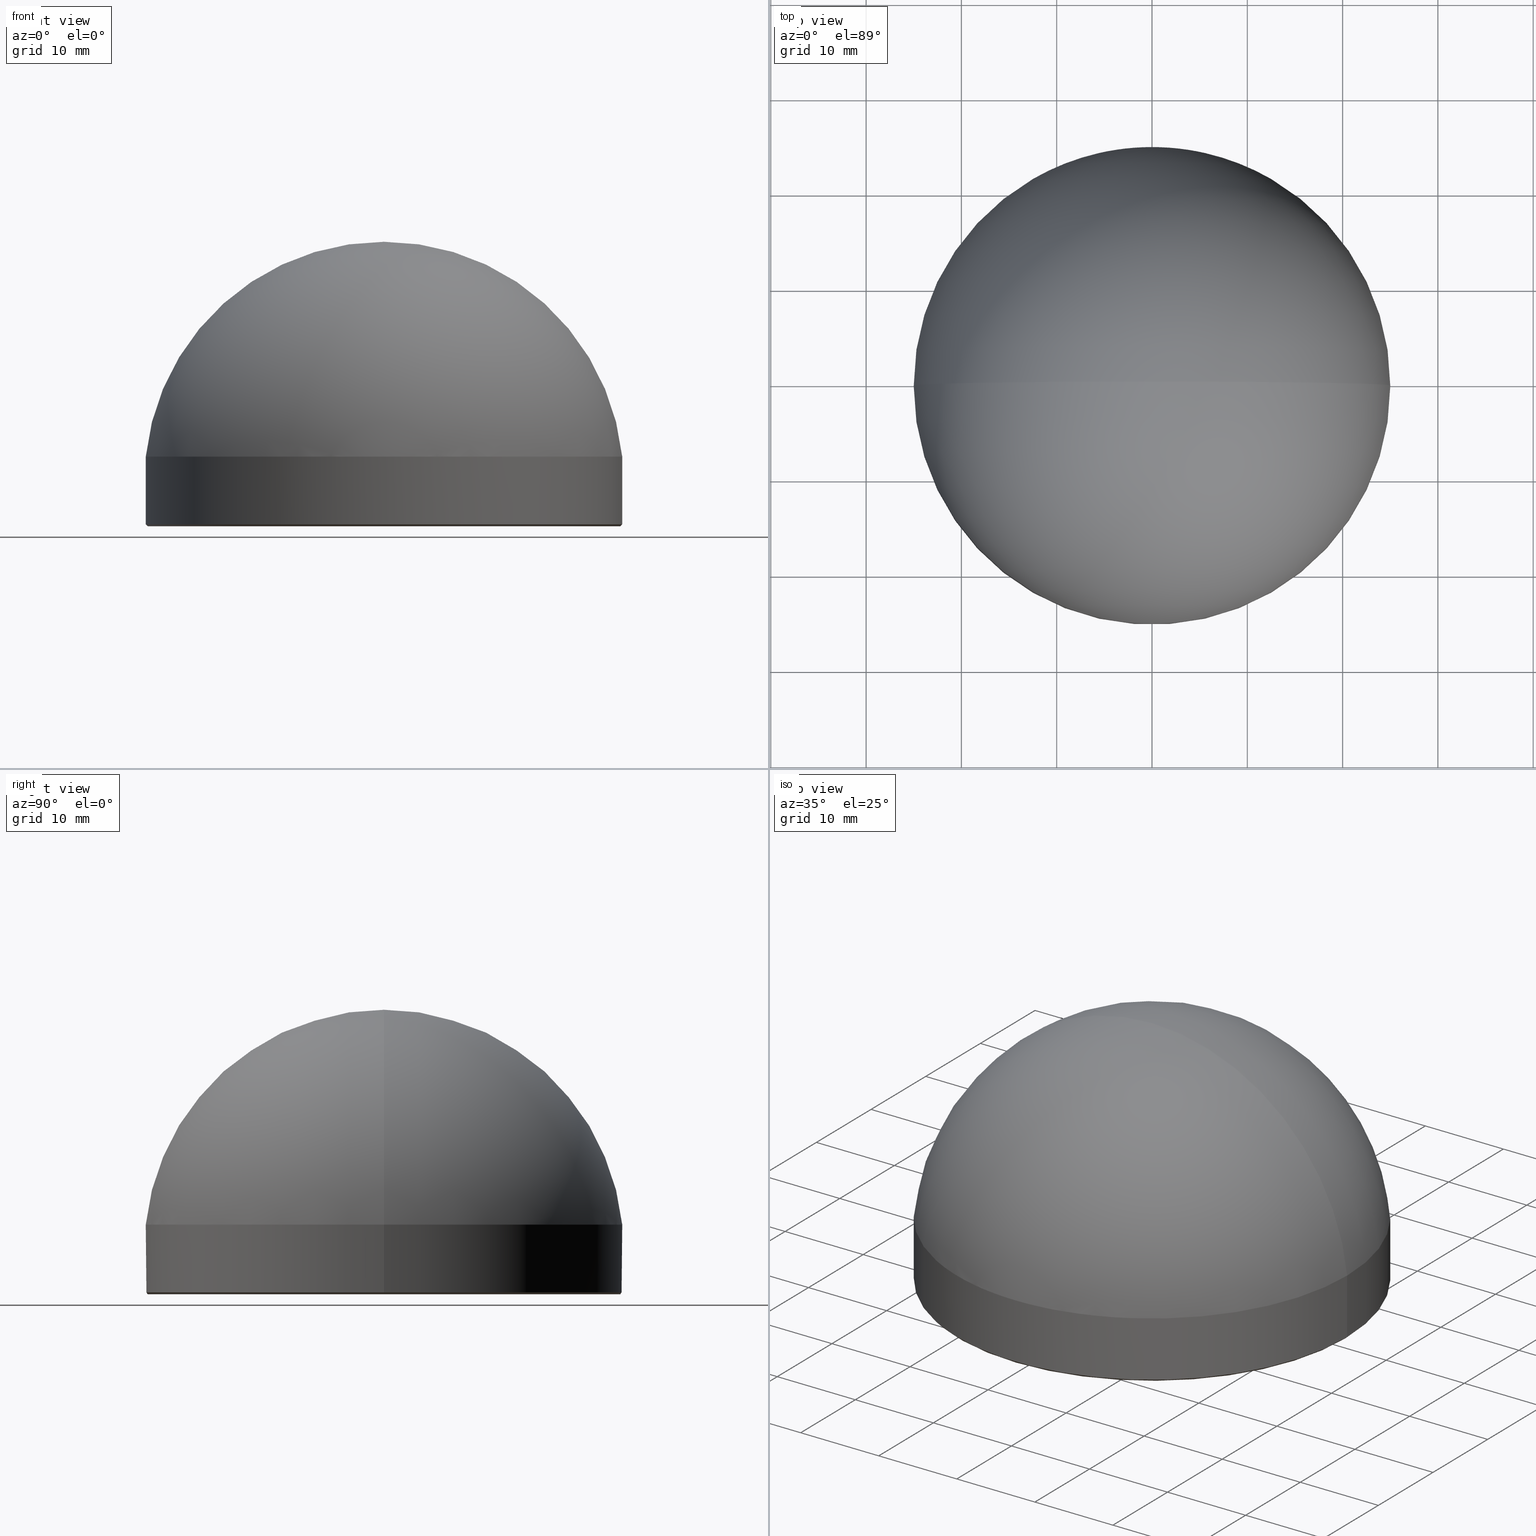
[diagram: canonical four-view strip — front | top / right | iso, engineering-drawing reading convention]
A machine part, canonical four-view strip (front | top / right | iso — engineering-drawing reading convention). The complete STEP part file that produces these views, byte-faithful:
ISO-10303-21;
HEADER;
FILE_DESCRIPTION (( 'STEP AP214' ),
    '1' );
FILE_NAME ('GLA21-050-040-UV.STEP',
    '2024-08-09T08:54:14',
    ( 'Windows User' ),
    ( 'P R C' ),
    'SwSTEP 2.0',
    'SolidWorks 2022',
    '' );
FILE_SCHEMA (( 'AUTOMOTIVE_DESIGN' ));
ENDSEC;

DATA;
#1 = ADVANCED_FACE ( 'NONE', ( #209 ), #108, .T. ) ;
#2 = CARTESIAN_POINT ( 'NONE',  ( -25.00000000000000000, 3.061616997868383043E-15, 0.2000000000000196065 ) ) ;
#3 = MANIFOLD_SOLID_BREP ( '����1', #14 ) ;
#4 = CARTESIAN_POINT ( 'NONE',  ( 0.000000000000000000, 0.000000000000000000, 0.2000000000000196065 ) ) ;
#5 = DIRECTION ( 'NONE',  ( 1.000000000000000000, 0.000000000000000000, 0.000000000000000000 ) ) ;
#6 = CARTESIAN_POINT ( 'NONE',  ( 24.79999999999999005, 0.000000000000000000, 0.000000000000000000 ) ) ;
#7 = CIRCLE ( 'NONE', #176, 24.79999999999999005 ) ;
#8 =( LENGTH_UNIT ( ) NAMED_UNIT ( * ) SI_UNIT ( .MILLI., .METRE. ) );
#9 = ORIENTED_EDGE ( 'NONE', *, *, #120, .T. ) ;
#10 = VERTEX_POINT ( 'NONE', #58 ) ;
#11 = FACE_OUTER_BOUND ( 'NONE', #30, .T. ) ;
#12 = VECTOR ( 'NONE', #138, 1000.000000000000000 ) ;
#13 = PRODUCT_DEFINITION ( 'δ֪', '', #151, #194 ) ;
#14 = CLOSED_SHELL ( 'NONE', ( #131, #165, #60, #1, #92, #64, #24 ) ) ;
#15 = DIRECTION ( 'NONE',  ( 0.7071067811865352493, 0.000000000000000000, 0.7071067811865597852 ) ) ;
#16 = PRODUCT ( 'GLA21-050-040-UV', 'GLA21-050-040-UV', '', ( #210 ) ) ;
#17 = CIRCLE ( 'NONE', #85, 24.79999999999999005 ) ;
#18 = CARTESIAN_POINT ( 'NONE',  ( 0.000000000000000000, 0.000000000000000000, 0.2000000000000196065 ) ) ;
#19 = FACE_OUTER_BOUND ( 'NONE', #129, .T. ) ;
#20 = VECTOR ( 'NONE', #63, 1000.000000000000000 ) ;
#21 = PLANE ( 'NONE',  #94 ) ;
#22 =( GEOMETRIC_REPRESENTATION_CONTEXT ( 3 ) GLOBAL_UNCERTAINTY_ASSIGNED_CONTEXT ( ( #45 ) ) GLOBAL_UNIT_ASSIGNED_CONTEXT ( ( #121, #123, #140 ) ) REPRESENTATION_CONTEXT ( 'NONE', 'WORKASPACE' ) );
#23 = PRESENTATION_STYLE_ASSIGNMENT (( #104 ) ) ;
#24 = ADVANCED_FACE ( 'NONE', ( #25 ), #83, .T. ) ;
#25 = FACE_OUTER_BOUND ( 'NONE', #174, .T. ) ;
#26 = VERTEX_POINT ( 'NONE', #197 ) ;
#27 = AXIS2_PLACEMENT_3D ( 'NONE', #109, #192, #70 ) ;
#28 = CARTESIAN_POINT ( 'NONE',  ( -25.00000000000000000, 0.000000000000000000, 7.299999999999999822 ) ) ;
#29 =( NAMED_UNIT ( * ) PLANE_ANGLE_UNIT ( ) SI_UNIT ( $, .RADIAN. ) );
#30 = EDGE_LOOP ( 'NONE', ( #122, #9, #162, #96 ) ) ;
#31 = EDGE_CURVE ( 'NONE', #149, #87, #101, .T. ) ;
#32 =( GEOMETRIC_REPRESENTATION_CONTEXT ( 3 ) GLOBAL_UNCERTAINTY_ASSIGNED_CONTEXT ( ( #77 ) ) GLOBAL_UNIT_ASSIGNED_CONTEXT ( ( #107, #86, #88 ) ) REPRESENTATION_CONTEXT ( 'NONE', 'WORKASPACE' ) );
#33 = DIRECTION ( 'NONE',  ( -0.000000000000000000, -0.000000000000000000, -1.000000000000000000 ) ) ;
#34 = LINE ( 'NONE', #190, #12 ) ;
#35 = DIRECTION ( 'NONE',  ( 1.000000000000000000, -1.224646799147353454E-16, 0.000000000000000000 ) ) ;
#36 = CARTESIAN_POINT ( 'NONE',  ( 25.00000000000000000, 3.061616997868383043E-15, 7.299999999999999822 ) ) ;
#37 = STYLED_ITEM ( 'NONE', ( #23 ), #75 ) ;
#38 = SURFACE_STYLE_FILL_AREA ( #55 ) ;
#39 = VERTEX_POINT ( 'NONE', #111 ) ;
#40 = SURFACE_SIDE_STYLE ('',( #38 ) ) ;
#41 = ORIENTED_EDGE ( 'NONE', *, *, #150, .F. ) ;
#42 = DIRECTION ( 'NONE',  ( 1.000000000000000000, 0.000000000000000000, 0.000000000000000000 ) ) ;
#43 = AXIS2_PLACEMENT_3D ( 'NONE', #72, #156, #144 ) ;
#44 = CARTESIAN_POINT ( 'NONE',  ( 0.000000000000000000, 0.000000000000000000, 7.299999999999999822 ) ) ;
#45 = UNCERTAINTY_MEASURE_WITH_UNIT (LENGTH_MEASURE( 1.000000000000000082E-05 ), #121, 'distance_accuracy_value', 'NONE');
#46 = COLOUR_RGB ( '',1.000000000000000000, 1.000000000000000000, 1.000000000000000000 ) ;
#47 = DIRECTION ( 'NONE',  ( -0.000000000000000000, -0.000000000000000000, 1.000000000000000000 ) ) ;
#48 = PRODUCT_DEFINITION_SHAPE ( 'NONE', 'NONE',  #13 ) ;
#49 = PRESENTATION_LAYER_ASSIGNMENT (  '', '', ( #213 ) ) ;
#50 = DIRECTION ( 'NONE',  ( -1.000000000000000000, 0.000000000000000000, 0.000000000000000000 ) ) ;
#51 = CIRCLE ( 'NONE', #198, 25.00000000000000000 ) ;
#52 = DIRECTION ( 'NONE',  ( 0.000000000000000000, 0.000000000000000000, 1.000000000000000000 ) ) ;
#53 = EDGE_CURVE ( 'NONE', #87, #26, #177, .T. ) ;
#54 = CARTESIAN_POINT ( 'NONE',  ( 25.00000000000000000, 0.000000000000000000, 0.2000000000000196065 ) ) ;
#55 = FILL_AREA_STYLE ('',( #173 ) ) ;
#56 = ORIENTED_EDGE ( 'NONE', *, *, #130, .T. ) ;
#57 = DIRECTION ( 'NONE',  ( -1.000000000000000000, 0.000000000000000000, 0.000000000000000000 ) ) ;
#58 = CARTESIAN_POINT ( 'NONE',  ( -24.79999999999999005, 3.049370529876908897E-15, 0.000000000000000000 ) ) ;
#59 = CARTESIAN_POINT ( 'NONE',  ( 0.000000000000000000, 0.000000000000000000, 0.2000000000000196065 ) ) ;
#60 = ADVANCED_FACE ( 'NONE', ( #11 ), #61, .T. ) ;
#61 = CYLINDRICAL_SURFACE ( 'NONE', #62, 25.00000000000000000 ) ;
#62 = AXIS2_PLACEMENT_3D ( 'NONE', #44, #33, #132 ) ;
#63 = DIRECTION ( 'NONE',  ( -0.000000000000000000, -0.000000000000000000, -1.000000000000000000 ) ) ;
#64 = ADVANCED_FACE ( 'NONE', ( #201 ), #182, .T. ) ;
#65 = LINE ( 'NONE', #2, #133 ) ;
#66 = DIRECTION ( 'NONE',  ( -0.000000000000000000, -0.000000000000000000, 1.000000000000000000 ) ) ;
#67 = CARTESIAN_POINT ( 'NONE',  ( 0.000000000000000000, 0.000000000000000000, 0.000000000000000000 ) ) ;
#68 = ORIENTED_EDGE ( 'NONE', *, *, #202, .T. ) ;
#69 = UNCERTAINTY_MEASURE_WITH_UNIT (LENGTH_MEASURE( 1.000000000000000082E-05 ), #8, 'distance_accuracy_value', 'NONE');
#70 = DIRECTION ( 'NONE',  ( 1.000000000000000000, 0.000000000000000000, 0.000000000000000000 ) ) ;
#71 = CARTESIAN_POINT ( 'NONE',  ( 0.000000000000000000, 0.000000000000000000, 7.299999999999999822 ) ) ;
#72 = CARTESIAN_POINT ( 'NONE',  ( 0.000000000000000000, 0.000000000000000000, 7.299999999999999822 ) ) ;
#73 = FILL_AREA_STYLE ('',( #141 ) ) ;
#74 = PRODUCT_RELATED_PRODUCT_CATEGORY ( 'part', '', ( #16 ) ) ;
#75 = ADVANCED_BREP_SHAPE_REPRESENTATION ( 'GLA21-050-040-UV', ( #3, #27 ), #22 ) ;
#76 = CIRCLE ( 'NONE', #136, 25.13309312638581261 ) ;
#77 = UNCERTAINTY_MEASURE_WITH_UNIT (LENGTH_MEASURE( 1.000000000000000082E-05 ), #107, 'distance_accuracy_value', 'NONE');
#78 = COLOUR_RGB ( '',1.000000000000000000, 1.000000000000000000, 1.000000000000000000 ) ;
#79 = CARTESIAN_POINT ( 'NONE',  ( 0.000000000000000000, 0.000000000000000000, 4.716906873614187923 ) ) ;
#80 = AXIS2_PLACEMENT_3D ( 'NONE', #79, #152, #35 ) ;
#81 = CARTESIAN_POINT ( 'NONE',  ( 0.000000000000000000, 0.000000000000000000, 0.000000000000000000 ) ) ;
#82 = DIRECTION ( 'NONE',  ( -0.000000000000000000, -0.000000000000000000, -1.000000000000000000 ) ) ;
#83 = CONICAL_SURFACE ( 'NONE', #204, 25.00000000000000000, 0.7853981633974309595 ) ;
#84 = CARTESIAN_POINT ( 'NONE',  ( 0.000000000000000000, 0.000000000000000000, 4.716906873614187923 ) ) ;
#85 = AXIS2_PLACEMENT_3D ( 'NONE', #67, #188, #187 ) ;
#86 =( NAMED_UNIT ( * ) PLANE_ANGLE_UNIT ( ) SI_UNIT ( $, .RADIAN. ) );
#87 = VERTEX_POINT ( 'NONE', #115 ) ;
#88 =( NAMED_UNIT ( * ) SI_UNIT ( $, .STERADIAN. ) SOLID_ANGLE_UNIT ( ) );
#89 = MECHANICAL_DESIGN_GEOMETRIC_PRESENTATION_REPRESENTATION (  '', ( #37 ), #32 ) ;
#90 = ORIENTED_EDGE ( 'NONE', *, *, #169, .F. ) ;
#91 = SURFACE_STYLE_USAGE ( .BOTH. , #216 ) ;
#92 = ADVANCED_FACE ( 'NONE', ( #205 ), #21, .F. ) ;
#93 = ORIENTED_EDGE ( 'NONE', *, *, #139, .F. ) ;
#94 = AXIS2_PLACEMENT_3D ( 'NONE', #81, #153, #186 ) ;
#95 = EDGE_LOOP ( 'NONE', ( #180, #112 ) ) ;
#96 = ORIENTED_EDGE ( 'NONE', *, *, #53, .F. ) ;
#97 = EDGE_CURVE ( 'NONE', #193, #10, #17, .T. ) ;
#98 = CIRCLE ( 'NONE', #80, 25.13309312638581261 ) ;
#99 = CARTESIAN_POINT ( 'NONE',  ( 0.000000000000000000, 0.000000000000000000, 0.2000000000000196065 ) ) ;
#100 = DIRECTION ( 'NONE',  ( -0.7071067811865352493, 8.659560562354782482E-17, 0.7071067811865597852 ) ) ;
#101 = CIRCLE ( 'NONE', #116, 25.00000000000000000 ) ;
#102 = DIRECTION ( 'NONE',  ( 1.000000000000000000, 0.000000000000000000, 0.000000000000000000 ) ) ;
#103 = CIRCLE ( 'NONE', #148, 25.00000000000000000 ) ;
#104 = SURFACE_STYLE_USAGE ( .BOTH. , #40 ) ;
#105 = EDGE_CURVE ( 'NONE', #26, #207, #103, .T. ) ;
#106 = PRESENTATION_STYLE_ASSIGNMENT (( #91 ) ) ;
#107 =( LENGTH_UNIT ( ) NAMED_UNIT ( * ) SI_UNIT ( .MILLI., .METRE. ) );
#108 = CYLINDRICAL_SURFACE ( 'NONE', #179, 25.00000000000000000 ) ;
#109 = CARTESIAN_POINT ( 'NONE',  ( 0.000000000000000000, 0.000000000000000000, 0.000000000000000000 ) ) ;
#110 = CONICAL_SURFACE ( 'NONE', #181, 25.00000000000000000, 0.7853981633974309595 ) ;
#111 = CARTESIAN_POINT ( 'NONE',  ( -1.538958102495036695E-15, 0.000000000000000000, 29.85000000000000142 ) ) ;
#112 = ORIENTED_EDGE ( 'NONE', *, *, #185, .T. ) ;
#113 = CARTESIAN_POINT ( 'NONE',  ( 0.000000000000000000, 0.000000000000000000, 7.299999999999999822 ) ) ;
#114 = ORIENTED_EDGE ( 'NONE', *, *, #208, .F. ) ;
#115 = CARTESIAN_POINT ( 'NONE',  ( -25.00000000000000000, 0.000000000000000000, 7.299999999999999822 ) ) ;
#116 = AXIS2_PLACEMENT_3D ( 'NONE', #71, #126, #42 ) ;
#117 = DIRECTION ( 'NONE',  ( -0.000000000000000000, -1.000000000000000000, 0.000000000000000000 ) ) ;
#118 = DIRECTION ( 'NONE',  ( 1.000000000000000000, 0.000000000000000000, 0.000000000000000000 ) ) ;
#119 = DIRECTION ( 'NONE',  ( -0.000000000000000000, -0.000000000000000000, 1.000000000000000000 ) ) ;
#120 = EDGE_CURVE ( 'NONE', #149, #207, #34, .T. ) ;
#121 =( LENGTH_UNIT ( ) NAMED_UNIT ( * ) SI_UNIT ( .MILLI., .METRE. ) );
#122 = ORIENTED_EDGE ( 'NONE', *, *, #31, .F. ) ;
#123 =( NAMED_UNIT ( * ) PLANE_ANGLE_UNIT ( ) SI_UNIT ( $, .RADIAN. ) );
#124 = ORIENTED_EDGE ( 'NONE', *, *, #208, .T. ) ;
#125 = APPLICATION_PROTOCOL_DEFINITION ( 'draft international standard', 'automotive_design', 1998, #160 ) ;
#126 = DIRECTION ( 'NONE',  ( 0.000000000000000000, 0.000000000000000000, 1.000000000000000000 ) ) ;
#127 = ORIENTED_EDGE ( 'NONE', *, *, #97, .F. ) ;
#128 = DIRECTION ( 'NONE',  ( 1.000000000000000000, 0.000000000000000000, 0.000000000000000000 ) ) ;
#129 = EDGE_LOOP ( 'NONE', ( #143, #157, #90, #178 ) ) ;
#130 = EDGE_CURVE ( 'NONE', #193, #207, #166, .T. ) ;
#131 = ADVANCED_FACE ( 'NONE', ( #19 ), #110, .T. ) ;
#132 = DIRECTION ( 'NONE',  ( -1.000000000000000000, 0.000000000000000000, 0.000000000000000000 ) ) ;
#133 = VECTOR ( 'NONE', #100, 1000.000000000000000 ) ;
#134 = DIRECTION ( 'NONE',  ( 1.000000000000000000, 0.000000000000000000, 0.000000000000000000 ) ) ;
#135 = SPHERICAL_SURFACE ( 'NONE', #168, 25.13309312638581261 ) ;
#136 = AXIS2_PLACEMENT_3D ( 'NONE', #137, #206, #52 ) ;
#137 = CARTESIAN_POINT ( 'NONE',  ( 0.000000000000000000, 0.000000000000000000, 4.716906873614187923 ) ) ;
#138 = DIRECTION ( 'NONE',  ( -0.000000000000000000, -0.000000000000000000, -1.000000000000000000 ) ) ;
#139 = EDGE_CURVE ( 'NONE', #149, #39, #98, .T. ) ;
#140 =( NAMED_UNIT ( * ) SI_UNIT ( $, .STERADIAN. ) SOLID_ANGLE_UNIT ( ) );
#141 = FILL_AREA_STYLE_COLOUR ( '', #78 ) ;
#142 = VECTOR ( 'NONE', #15, 1000.000000000000000 ) ;
#143 = ORIENTED_EDGE ( 'NONE', *, *, #185, .F. ) ;
#144 = DIRECTION ( 'NONE',  ( 1.000000000000000000, 0.000000000000000000, 0.000000000000000000 ) ) ;
#145 = EDGE_LOOP ( 'NONE', ( #199, #114, #164, #159 ) ) ;
#146 = EDGE_LOOP ( 'NONE', ( #93, #147, #68 ) ) ;
#147 = ORIENTED_EDGE ( 'NONE', *, *, #31, .T. ) ;
#148 = AXIS2_PLACEMENT_3D ( 'NONE', #4, #47, #102 ) ;
#149 = VERTEX_POINT ( 'NONE', #36 ) ;
#150 = EDGE_CURVE ( 'NONE', #10, #26, #65, .T. ) ;
#151 = PRODUCT_DEFINITION_FORMATION_WITH_SPECIFIED_SOURCE ( '�κ�', '', #16, .NOT_KNOWN. ) ;
#152 = DIRECTION ( 'NONE',  ( -1.224646799147353207E-16, -1.000000000000000000, -0.000000000000000000 ) ) ;
#153 = DIRECTION ( 'NONE',  ( 0.000000000000000000, 0.000000000000000000, 1.000000000000000000 ) ) ;
#154 = FACE_OUTER_BOUND ( 'NONE', #211, .T. ) ;
#155 = DIRECTION ( 'NONE',  ( -0.000000000000000000, -0.000000000000000000, -1.000000000000000000 ) ) ;
#156 = DIRECTION ( 'NONE',  ( 0.000000000000000000, 0.000000000000000000, 1.000000000000000000 ) ) ;
#157 = ORIENTED_EDGE ( 'NONE', *, *, #150, .T. ) ;
#158 = ORIENTED_EDGE ( 'NONE', *, *, #202, .F. ) ;
#159 = ORIENTED_EDGE ( 'NONE', *, *, #105, .T. ) ;
#160 = APPLICATION_CONTEXT ( 'automotive_design' ) ;
#161 = AXIS2_PLACEMENT_3D ( 'NONE', #167, #117, #172 ) ;
#162 = ORIENTED_EDGE ( 'NONE', *, *, #169, .T. ) ;
#163 = ORIENTED_EDGE ( 'NONE', *, *, #139, .T. ) ;
#164 = ORIENTED_EDGE ( 'NONE', *, *, #53, .T. ) ;
#165 = ADVANCED_FACE ( 'NONE', ( #154 ), #135, .T. ) ;
#166 = LINE ( 'NONE', #54, #142 ) ;
#167 = CARTESIAN_POINT ( 'NONE',  ( 0.000000000000000000, 0.000000000000000000, 4.716906873614187923 ) ) ;
#168 = AXIS2_PLACEMENT_3D ( 'NONE', #84, #203, #50 ) ;
#169 = EDGE_CURVE ( 'NONE', #207, #26, #51, .T. ) ;
#170 = CARTESIAN_POINT ( 'NONE',  ( 0.000000000000000000, 0.000000000000000000, 0.000000000000000000 ) ) ;
#171 = APPLICATION_CONTEXT ( 'automotive_design' ) ;
#172 = DIRECTION ( 'NONE',  ( -1.000000000000000000, 0.000000000000000000, 0.000000000000000000 ) ) ;
#173 = FILL_AREA_STYLE_COLOUR ( '', #46 ) ;
#174 = EDGE_LOOP ( 'NONE', ( #41, #127, #56, #215 ) ) ;
#175 = MECHANICAL_DESIGN_GEOMETRIC_PRESENTATION_REPRESENTATION (  '', ( #213 ), #200 ) ;
#176 = AXIS2_PLACEMENT_3D ( 'NONE', #170, #82, #5 ) ;
#177 = LINE ( 'NONE', #28, #20 ) ;
#178 = ORIENTED_EDGE ( 'NONE', *, *, #130, .F. ) ;
#179 = AXIS2_PLACEMENT_3D ( 'NONE', #113, #155, #57 ) ;
#180 = ORIENTED_EDGE ( 'NONE', *, *, #97, .T. ) ;
#181 = AXIS2_PLACEMENT_3D ( 'NONE', #18, #119, #118 ) ;
#182 = SPHERICAL_SURFACE ( 'NONE', #161, 25.13309312638581261 ) ;
#183 = CIRCLE ( 'NONE', #43, 25.00000000000000000 ) ;
#184 = PRESENTATION_LAYER_ASSIGNMENT (  '', '', ( #37 ) ) ;
#185 = EDGE_CURVE ( 'NONE', #10, #193, #7, .T. ) ;
#186 = DIRECTION ( 'NONE',  ( 1.000000000000000000, 0.000000000000000000, -0.000000000000000000 ) ) ;
#187 = DIRECTION ( 'NONE',  ( 1.000000000000000000, 0.000000000000000000, 0.000000000000000000 ) ) ;
#188 = DIRECTION ( 'NONE',  ( -0.000000000000000000, -0.000000000000000000, -1.000000000000000000 ) ) ;
#189 = CARTESIAN_POINT ( 'NONE',  ( 25.00000000000000000, 3.061616997868383043E-15, 0.2000000000000196065 ) ) ;
#190 = CARTESIAN_POINT ( 'NONE',  ( 25.00000000000000000, 3.061616997868383043E-15, 7.299999999999999822 ) ) ;
#191 = SURFACE_STYLE_FILL_AREA ( #73 ) ;
#192 = DIRECTION ( 'NONE',  ( 0.000000000000000000, 0.000000000000000000, 1.000000000000000000 ) ) ;
#193 = VERTEX_POINT ( 'NONE', #6 ) ;
#194 = PRODUCT_DEFINITION_CONTEXT ( 'detailed design', #171, 'design' ) ;
#195 = SHAPE_DEFINITION_REPRESENTATION ( #48, #75 ) ;
#196 = DIRECTION ( 'NONE',  ( -0.000000000000000000, -0.000000000000000000, 1.000000000000000000 ) ) ;
#197 = CARTESIAN_POINT ( 'NONE',  ( -25.00000000000000000, 0.000000000000000000, 0.2000000000000196065 ) ) ;
#198 = AXIS2_PLACEMENT_3D ( 'NONE', #99, #66, #134 ) ;
#199 = ORIENTED_EDGE ( 'NONE', *, *, #120, .F. ) ;
#200 =( GEOMETRIC_REPRESENTATION_CONTEXT ( 3 ) GLOBAL_UNCERTAINTY_ASSIGNED_CONTEXT ( ( #69 ) ) GLOBAL_UNIT_ASSIGNED_CONTEXT ( ( #8, #29, #214 ) ) REPRESENTATION_CONTEXT ( 'NONE', 'WORKASPACE' ) );
#201 = FACE_OUTER_BOUND ( 'NONE', #146, .T. ) ;
#202 = EDGE_CURVE ( 'NONE', #87, #39, #76, .T. ) ;
#203 = DIRECTION ( 'NONE',  ( -0.000000000000000000, -1.000000000000000000, 0.000000000000000000 ) ) ;
#204 = AXIS2_PLACEMENT_3D ( 'NONE', #59, #196, #128 ) ;
#205 = FACE_OUTER_BOUND ( 'NONE', #95, .T. ) ;
#206 = DIRECTION ( 'NONE',  ( 0.000000000000000000, 1.000000000000000000, 0.000000000000000000 ) ) ;
#207 = VERTEX_POINT ( 'NONE', #189 ) ;
#208 = EDGE_CURVE ( 'NONE', #87, #149, #183, .T. ) ;
#209 = FACE_OUTER_BOUND ( 'NONE', #145, .T. ) ;
#210 = PRODUCT_CONTEXT ( 'NONE', #160, 'mechanical' ) ;
#211 = EDGE_LOOP ( 'NONE', ( #124, #163, #158 ) ) ;
#212 = APPLICATION_PROTOCOL_DEFINITION ( 'draft international standard', 'automotive_design', 1998, #171 ) ;
#213 = STYLED_ITEM ( 'NONE', ( #106 ), #3 ) ;
#214 =( NAMED_UNIT ( * ) SI_UNIT ( $, .STERADIAN. ) SOLID_ANGLE_UNIT ( ) );
#215 = ORIENTED_EDGE ( 'NONE', *, *, #105, .F. ) ;
#216 = SURFACE_SIDE_STYLE ('',( #191 ) ) ;
ENDSEC;
END-ISO-10303-21;
